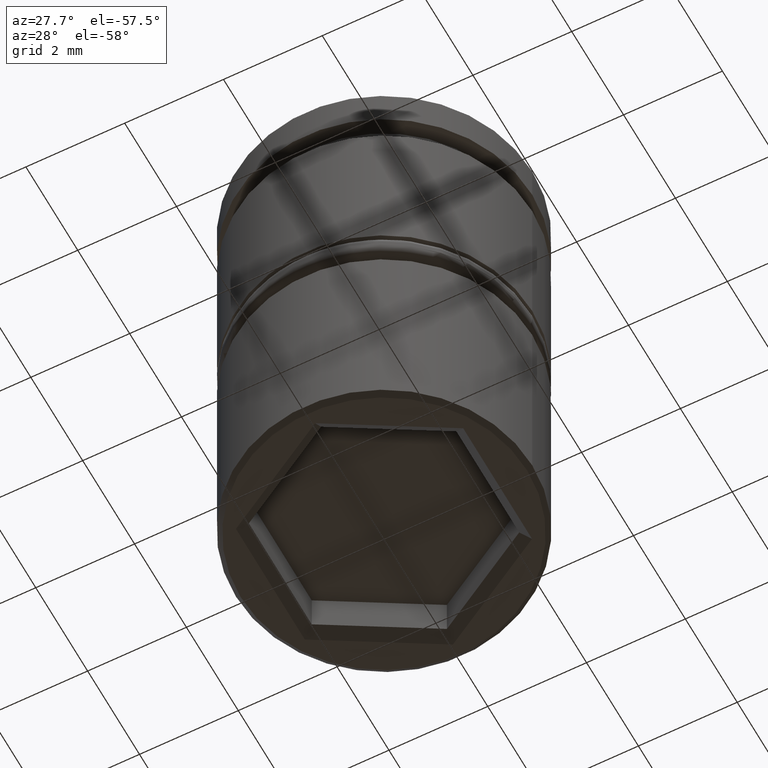
[diagram: clean part render]
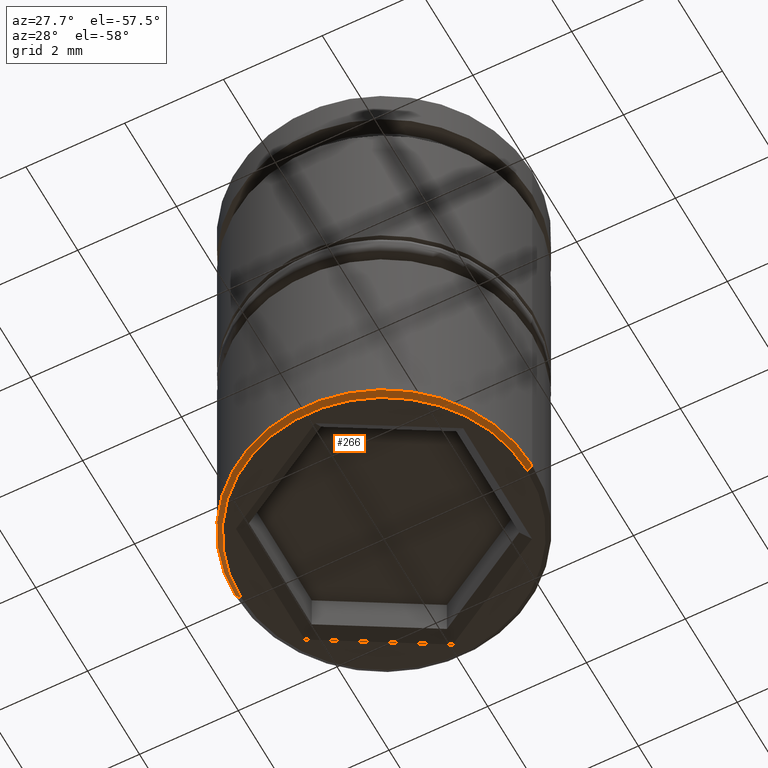
[diagram: same view with one face highlighted and labeled with its STEP entity id]
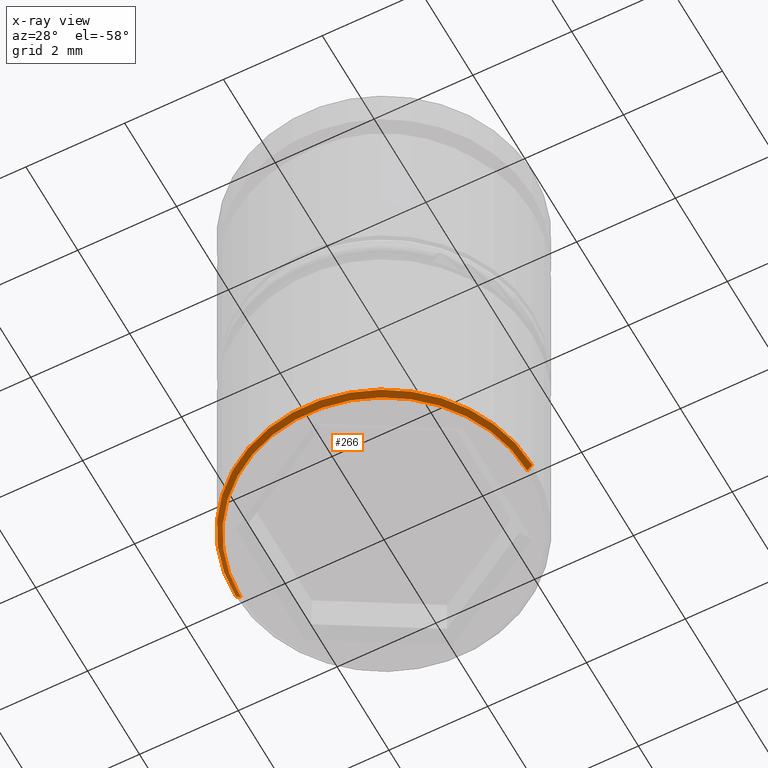
[diagram: x-ray of the same camera — body ghosted, the highlighted face saturated]
A machine part, auxiliary view. The second image highlights one B-rep face of the part: STEP entity #266.
The next image is the same camera in x-ray: the body ghosted, the highlighted face saturated — about 0% of this face is hidden behind the body in this view.
In plain terms, the highlighted conical surface has half-angle 45 deg.
Its self-contained STEP definition (entity closure, byte-faithful):
#68 = VERTEX_POINT ( 'NONE', #1004 ) ;
#97 = CARTESIAN_POINT ( 'NONE',  ( -3.000000000000000000, 3.673940397442059868E-16, -9.900000000000000355 ) ) ;
#138 = DIRECTION ( 'NONE',  ( -1.000000000000000000, 0.000000000000000000, 0.000000000000000000 ) ) ;
#168 = ORIENTED_EDGE ( 'NONE', *, *, #1174, .F. ) ;
#182 = DIRECTION ( 'NONE',  ( -0.7071067811865460184, 8.659560562354913137E-17, 0.7071067811865489050 ) ) ;
#225 = VERTEX_POINT ( 'NONE', #809 ) ;
#230 = VECTOR ( 'NONE', #613, 1000.000000000000114 ) ;
#266 = ADVANCED_FACE ( 'NONE', ( #295 ), #959, .T. ) ;
#295 = FACE_OUTER_BOUND ( 'NONE', #1006, .T. ) ;
#313 = ORIENTED_EDGE ( 'NONE', *, *, #330, .F. ) ;
#315 = AXIS2_PLACEMENT_3D ( 'NONE', #778, #791, #138 ) ;
#329 = CARTESIAN_POINT ( 'NONE',  ( 3.000000000000000000, 0.000000000000000000, -9.900000000000000355 ) ) ;
#330 = EDGE_CURVE ( 'NONE', #225, #797, #852, .T. ) ;
#379 = DIRECTION ( 'NONE',  ( 1.000000000000000000, 0.000000000000000000, 0.000000000000000000 ) ) ;
#389 = DIRECTION ( 'NONE',  ( -0.000000000000000000, -0.000000000000000000, 1.000000000000000000 ) ) ;
#396 = DIRECTION ( 'NONE',  ( -1.000000000000000000, 0.000000000000000000, 0.000000000000000000 ) ) ;
#433 = EDGE_CURVE ( 'NONE', #757, #797, #1060, .T. ) ;
#445 = AXIS2_PLACEMENT_3D ( 'NONE', #666, #389, #379 ) ;
#572 = EDGE_CURVE ( 'NONE', #757, #68, #694, .T. ) ;
#586 = ORIENTED_EDGE ( 'NONE', *, *, #433, .T. ) ;
#613 = DIRECTION ( 'NONE',  ( 0.7071067811865460184, 0.000000000000000000, 0.7071067811865489050 ) ) ;
#666 = CARTESIAN_POINT ( 'NONE',  ( 0.000000000000000000, 0.000000000000000000, -9.900000000000000355 ) ) ;
#694 = CIRCLE ( 'NONE', #315, 2.900000000000001243 ) ;
#757 = VERTEX_POINT ( 'NONE', #891 ) ;
#778 = CARTESIAN_POINT ( 'NONE',  ( 0.000000000000000000, 0.000000000000000000, -10.00000000000000000 ) ) ;
#791 = DIRECTION ( 'NONE',  ( 0.000000000000000000, 0.000000000000000000, -1.000000000000000000 ) ) ;
#797 = VERTEX_POINT ( 'NONE', #874 ) ;
#809 = CARTESIAN_POINT ( 'NONE',  ( -3.000000000000000000, 3.673940397442059868E-16, -9.900000000000000355 ) ) ;
#852 = CIRCLE ( 'NONE', #1057, 3.000000000000000000 ) ;
#874 = CARTESIAN_POINT ( 'NONE',  ( 3.000000000000000000, 0.000000000000000000, -9.900000000000000355 ) ) ;
#891 = CARTESIAN_POINT ( 'NONE',  ( 2.900000000000001243, 0.000000000000000000, -10.00000000000000000 ) ) ;
#923 = DIRECTION ( 'NONE',  ( -0.000000000000000000, -0.000000000000000000, 1.000000000000000000 ) ) ;
#959 = CONICAL_SURFACE ( 'NONE', #445, 3.000000000000000000, 0.7853981633974461696 ) ;
#990 = LINE ( 'NONE', #97, #1027 ) ;
#1004 = CARTESIAN_POINT ( 'NONE',  ( -2.900000000000001243, 3.612708057484692590E-16, -10.00000000000000000 ) ) ;
#1006 = EDGE_LOOP ( 'NONE', ( #168, #1147, #586, #313 ) ) ;
#1027 = VECTOR ( 'NONE', #182, 1000.000000000000114 ) ;
#1028 = CARTESIAN_POINT ( 'NONE',  ( 0.000000000000000000, 0.000000000000000000, -9.900000000000000355 ) ) ;
#1057 = AXIS2_PLACEMENT_3D ( 'NONE', #1028, #923, #396 ) ;
#1060 = LINE ( 'NONE', #329, #230 ) ;
#1147 = ORIENTED_EDGE ( 'NONE', *, *, #572, .F. ) ;
#1174 = EDGE_CURVE ( 'NONE', #68, #225, #990, .T. ) ;